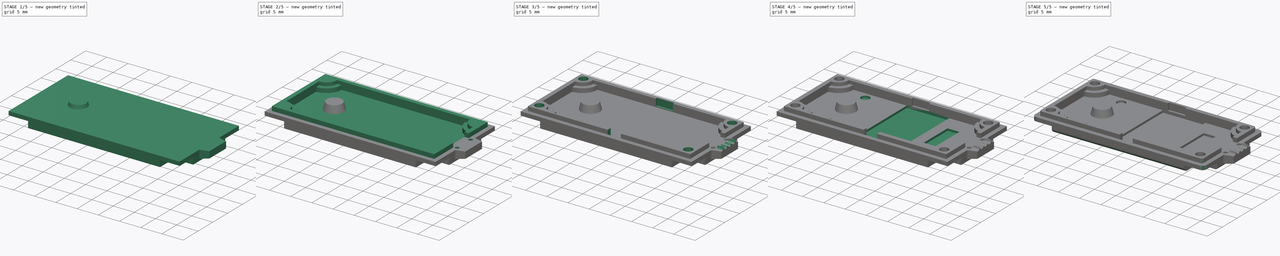
[diagram: build sequence overview — one tinted view per stage of 5, left to right]
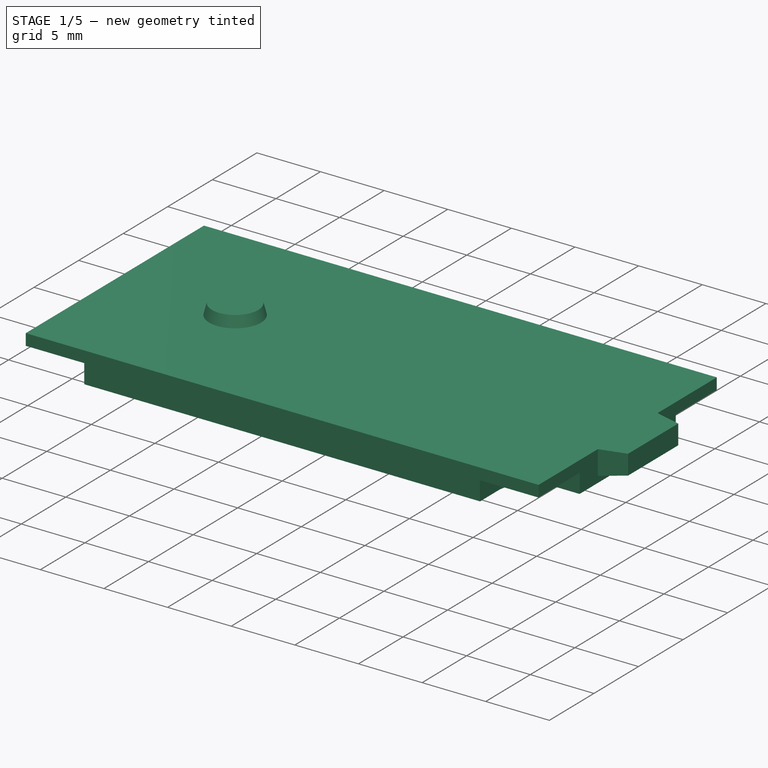
[diagram: stage 1 of 5 — iso view after this stage's code; geometry added in this stage tinted green]
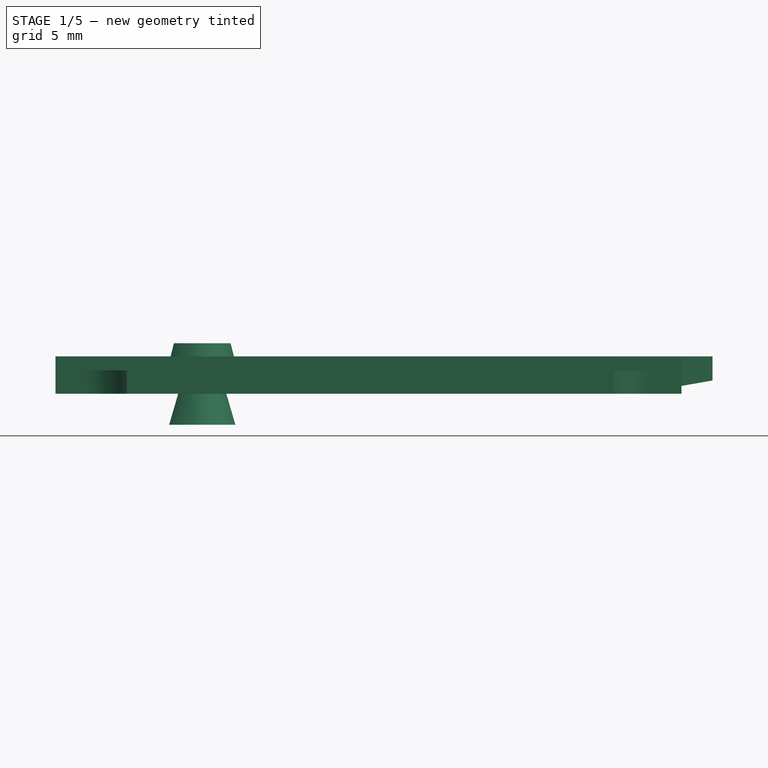
[diagram: stage 1 of 5 — front view after this stage's code; geometry added in this stage tinted green]
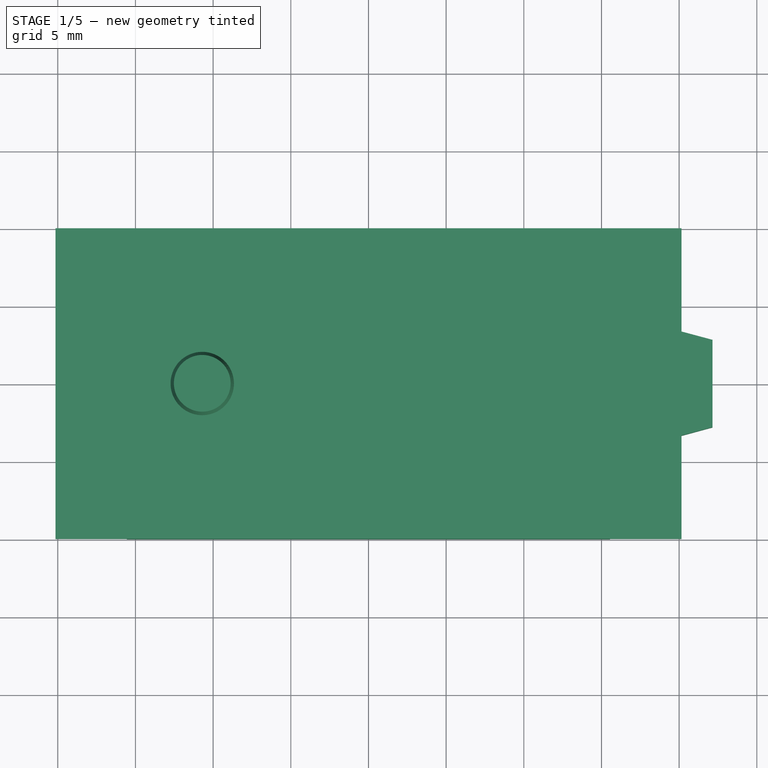
[diagram: stage 1 of 5 — top view after this stage's code; geometry added in this stage tinted green]
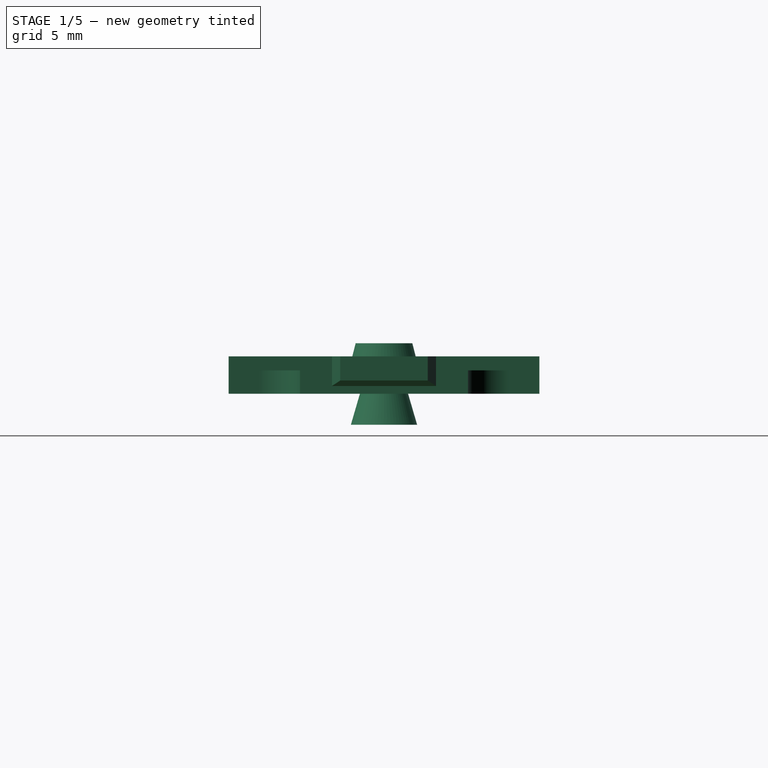
[diagram: stage 1 of 5 — right view after this stage's code; geometry added in this stage tinted green]
FCSTD DOCUMENT  (FreeCAD 0.14R3702 (Git))
Label: Futaba300_lid
License: CC-BY 3.0
LicenseURL: http://creativecommons.org/licenses/by/3.0/
objects: Sketcher::SketchObject×20, PartDesign::Pocket×14, Part::Fillet×4, PartDesign::Pad×3, Part::Loft×1, Part::MultiFuse×1, PartDesign::Revolution×1, Part::Cut×1, App::DocumentObjectGroup×1, Part::Feature×1
note: 64 computed .brp shape members not serialized (recipe doc carries the construction recipe); baked Part::Feature solids carry a one-line shape summary decoded from their .brp

FEATURE [Sketcher::SketchObject] Sketch001  label="Bottom_lid_main001"
  sketch-geometry (8):
    g0: LineSegment StartX=-20.15 StartY=10 StartZ=0 EndX=20.15 EndY=10 EndZ=0
    g1: LineSegment StartX=20.15 StartY=-10 StartZ=0 EndX=-20.15 EndY=-10 EndZ=0
    g2: LineSegment StartX=-20.15 StartY=-10 StartZ=0 EndX=-20.15 EndY=10 EndZ=0
    g3: LineSegment StartX=20.15 StartY=10 StartZ=0 EndX=20.15 EndY=3.35 EndZ=0
    g4: LineSegment StartX=20.15 StartY=3.35 StartZ=0 EndX=22.15 EndY=2.8141 EndZ=0
    g5: LineSegment StartX=22.15 StartY=2.8141 StartZ=0 EndX=22.15 EndY=-2.8141 EndZ=0
    g6: LineSegment StartX=22.15 StartY=-2.8141 StartZ=0 EndX=20.15 EndY=-3.35 EndZ=0
    g7: LineSegment StartX=20.15 StartY=-3.35 StartZ=0 EndX=20.15 EndY=-10 EndZ=0
  constraints (23):
    c: Coincident(g1,g2)
    c: Coincident(g2,g0)
    c: Horizontal(g1)
    c: Vertical(g2)
    c: Symmetric(g0,g0,g-2)
    c: Symmetric(g0,g1,g-1)
    c: Symmetric(g0,g1,g-1)
    c: Vertical(g3)
    c: Vertical(g5)
    c: Vertical(g7)
    c: Coincident(g0,g3)
    c: Coincident(g1,g7)
    c: Symmetric(g7,g3,g-1)
    c: Coincident(g3,g4)
    c: Symmetric(g5,g5,g-1)
    c: Coincident(g4,g5)
    c: Coincident(g5,g6)
    c: Coincident(g6,g7)
    c: Angle(g6) = -2.87979
    c: DistanceY(g3,g6) = -6.7
    c: DistanceX(g3,g4) = 2
    c: DistanceY(g2) = 20
    c: DistanceX(g0) = 40.3
FEATURE [PartDesign::Pad] Pad  label="Bottom_lid_main"
  Length = 2.4
  Length2 = 100
  Reversed = true
  Sketch = -> Sketch001
  Type = 0
FEATURE [Sketcher::SketchObject] Sketch
  ExternalGeometry = -> [Pad]
  Placement = pos=(0,-10,0) rot=(1,0,0;1.5708rad)
  Support = -> Pad [Face3]
  sketch-geometry (4):
    g0: LineSegment StartX=20.15 StartY=-2.4 StartZ=0 EndX=20.15 EndY=-1.9 EndZ=0
    g1: LineSegment StartX=20.15 StartY=-1.9 StartZ=0 EndX=22.5477 EndY=-1.47721 EndZ=0
    g2: LineSegment StartX=22.5477 StartY=-1.47721 StartZ=0 EndX=22.5477 EndY=-2.4 EndZ=0
    g3: LineSegment StartX=20.15 StartY=-2.4 StartZ=0 EndX=22.5477 EndY=-2.4 EndZ=0
  constraints (11):
    c: Vertical(g0)
    c: Vertical(g2)
    c: Horizontal(g3)
    c: Coincident(g2,g3)
    c: Coincident(g0,g3)
    c: Coincident(g0,g1)
    c: Coincident(g1,g2)
    c: Coincident(g-3,g0)
    c: Angle(g1) = 0.174533
    c: DistanceY(g-3,g0) = -1.9
    c: DistanceX(g3) = 2.39775
FEATURE [PartDesign::Pocket] Pocket
  Length = 5
  Sketch = -> Sketch
  Type = 1
FEATURE [Sketcher::SketchObject] Sketch002  label="botom_cutouts"
  ExternalGeometry = -> [Pocket]
  Placement = pos=(0,0,-2.4) rot=(1,0,0;3.14159rad)
  Support = -> Pocket [Face5]
  sketch-geometry (22):
    g0: LineSegment StartX=-15.55 StartY=11 StartZ=0 EndX=-15.55 EndY=8 EndZ=0
    g1: LineSegment StartX=-21.15 StartY=5.4 StartZ=0 EndX=-18.15 EndY=5.4 EndZ=0
    g2: ArcOfCircle CenterX=-18.15 CenterY=8 CenterZ=0 NormalX=0 NormalY=0 NormalZ=1 Radius=2.6 StartAngle=4.71239 EndAngle=6.28319
    g3: LineSegment StartX=21.15 StartY=11 StartZ=0 EndX=15.55 EndY=11 EndZ=0
    g4: LineSegment StartX=21.15 StartY=11 StartZ=0 EndX=21.15 EndY=5.4 EndZ=0
    g5: LineSegment StartX=21.15 StartY=5.4 StartZ=0 EndX=18.15 EndY=5.4 EndZ=0
    g6: LineSegment StartX=15.55 StartY=11 StartZ=0 EndX=15.55 EndY=8 EndZ=0
    g7: ArcOfCircle CenterX=18.15 CenterY=8 CenterZ=0 NormalX=0 NormalY=0 NormalZ=1 Radius=2.6 StartAngle=3.14159 EndAngle=4.71239
    g8: LineSegment StartX=-18.15 StartY=-5.4 StartZ=0 EndX=-21.15 EndY=-5.4 EndZ=0
    g9: LineSegment StartX=-21.15 StartY=-5.4 StartZ=0 EndX=-21.15 EndY=-11 EndZ=0
    g10: LineSegment StartX=-21.15 StartY=-11 StartZ=0 EndX=-15.55 EndY=-11 EndZ=0
    g11: LineSegment StartX=-15.55 StartY=-11 StartZ=0 EndX=-15.55 EndY=-8 EndZ=0
    g12: ArcOfCircle CenterX=-18.15 CenterY=-8 CenterZ=0 NormalX=0 NormalY=0 NormalZ=1 Radius=2.6 StartAngle=0 EndAngle=1.5708
    g13: LineSegment StartX=15.55 StartY=-8 StartZ=0 EndX=15.55 EndY=-11 EndZ=0
    g14: LineSegment StartX=15.55 StartY=-11 StartZ=0 EndX=21.15 EndY=-11 EndZ=0
    g15: LineSegment StartX=21.15 StartY=-11 StartZ=0 EndX=21.15 EndY=-5.4 EndZ=0
    g16: LineSegment StartX=21.15 StartY=-5.4 StartZ=0 EndX=18.15 EndY=-5.4 EndZ=0
    g17: ArcOfCircle CenterX=18.15 CenterY=-8 CenterZ=0 NormalX=0 NormalY=0 NormalZ=1 Radius=2.6 StartAngle=1.5708 EndAngle=3.14159
    g18: LineSegment [constr] StartX=-18.15 StartY=10 StartZ=0 EndX=-18.15 EndY=5.4 EndZ=0
    g19: LineSegment [constr] StartX=-20.15 StartY=8 StartZ=0 EndX=-15.55 EndY=8 EndZ=0
    g20: LineSegment StartX=-21.15 StartY=11 StartZ=0 EndX=-21.15 EndY=5.4 EndZ=0
    g21: LineSegment StartX=-21.15 StartY=11 StartZ=0 EndX=-15.55 EndY=11 EndZ=0
  constraints (54):
    c: Vertical(g0)
    c: Horizontal(g1)
    c: Tangent(g0,g2)
    c: Tangent(g1,g2)
    c: Radius(g2) = 2.6
    c: Horizontal(g3)
    c: Coincident(g3,g4)
    c: Vertical(g4)
    c: Coincident(g4,g5)
    c: Horizontal(g5)
    c: Vertical(g6)
    c: Coincident(g3,g6)
    c: Tangent(g6,g7)
    c: Tangent(g5,g7)
    c: Symmetric(g3,g0,g-2)
    c: Symmetric(g4,g1,g-2)
    c: Symmetric(g0,g6,g-2)
    c: Horizontal(g8)
    c: Coincident(g8,g9)
    c: Coincident(g9,g10)
    c: Coincident(g10,g11)
    c: Vertical(g11)
    c: Tangent(g8,g12)
    c: Tangent(g11,g12)
    c: Symmetric(g8,g1,g-1)
    c: Symmetric(g8,g1,g-1)
    c: Symmetric(g10,g0,g-1)
    c: Coincident(g13,g14)
    c: Horizontal(g14)
    c: Coincident(g14,g15)
    c: Vertical(g15)
    c: Coincident(g15,g16)
    c: Tangent(g16,g17)
    c: Tangent(g13,g17)
    c: Symmetric(g15,g8,g-2)
    c: Symmetric(g14,g9,g-2)
    c: Symmetric(g16,g8,g-2)
    c: Symmetric(g13,g10,g-2)
    c: Symmetric(g13,g11,g-2)
    c: Vertical(g18)
    c: Horizontal(g19)
    c: Coincident(g18,g1)
    c: PointOnObject(g18,g-3)
    c: Coincident(g19,g0)
    c: PointOnObject(g19,g-4)
    c: DistanceX(g19) = 4.6
    c: DistanceY(g18) = -4.6
    c: DistanceX(g1,g-4) = 1
    c: DistanceY(g0,g18) = -1
    c: Vertical(g20)
    c: Horizontal(g21)
    c: Coincident(g20,g21)
    c: Coincident(g21,g0)
    c: Coincident(g20,g1)
FEATURE [PartDesign::Pocket] Pocket001
  Length = 1.5
  Sketch = -> Sketch002
  Type = 0
FEATURE [Sketcher::SketchObject] Sketch017
  sketch-geometry (1):
    g0: Circle CenterX=0 CenterY=0 CenterZ=0 NormalX=0 NormalY=0 NormalZ=1 Radius=2.25
  constraints (2):
    c: Coincident(g0,g-1)
    c: Radius(g0) = 2.25
FEATURE [Sketcher::SketchObject] Sketch018
  Placement = pos=(0,0,1.67) rot=(0,0,1;0rad)
  sketch-geometry (1):
    g0: Circle CenterX=0 CenterY=0 CenterZ=0 NormalX=0 NormalY=0 NormalZ=1 Radius=1.825
  constraints (2):
    c: Coincident(g0,g-1)
    c: Radius(g0) = 1.825
FEATURE [Part::Loft] Loft
  Closed = false
  Placement = pos=(-10.7,0,-0.82) rot=(0,0,1;0rad)
  Ruled = false
  Sections = -> [Sketch017,Sketch018]
  Solid = true
FEATURE [Sketcher::SketchObject] Sketch019
  Placement = pos=(-10.7,0,-2.4) rot=(-1,0,0;4.71239rad)
  sketch-geometry (6):
    g0: LineSegment StartX=0 StartY=0 StartZ=0 EndX=0 EndY=1.2 EndZ=0
    g1: LineSegment StartX=0 StartY=1.2 StartZ=0 EndX=1.2 EndY=1.2 EndZ=0
    g2: LineSegment [constr] StartX=1.55 StartY=0 StartZ=0 EndX=0 EndY=0 EndZ=0
    g3: LineSegment StartX=1.2 StartY=1.2 StartZ=0 EndX=2.13333 EndY=-2 EndZ=0
    g4: LineSegment StartX=0 StartY=0 StartZ=0 EndX=0 EndY=-2 EndZ=0
    g5: LineSegment StartX=0 StartY=-2 StartZ=0 EndX=2.13333 EndY=-2 EndZ=0
  constraints (17):
    c: Vertical(g0)
    c: Coincident(g0,g1)
    c: Horizontal(g1)
    c: Coincident(g2,g0)
    c: Horizontal(g2)
    c: DistanceY(g0) = 1.2
    c: DistanceX(g1) = 1.2
    c: DistanceX(g2) = -1.55
    c: Coincident(g0,g-1)
    c: Coincident(g3,g1)
    c: PointOnObject(g2,g3)
    c: Coincident(g4,g-1)
    c: Vertical(g4)
    c: Coincident(g5,g4)
    c: Coincident(g5,g3)
    c: Horizontal(g5)
    c: DistanceY(g4) = -2
FEATURE [PartDesign::Revolution] Revolution
  Angle = 360
  Axis = (0,0,1)
  Base = (-10.7,0,-2.4)
  Placement = pos=(-10.7,0,-2.4) rot=(-1,0,0;4.71239rad)
  ReferenceAxis = -> Sketch019 [V_Axis]
  Reversed = true
  Sketch = -> Sketch019
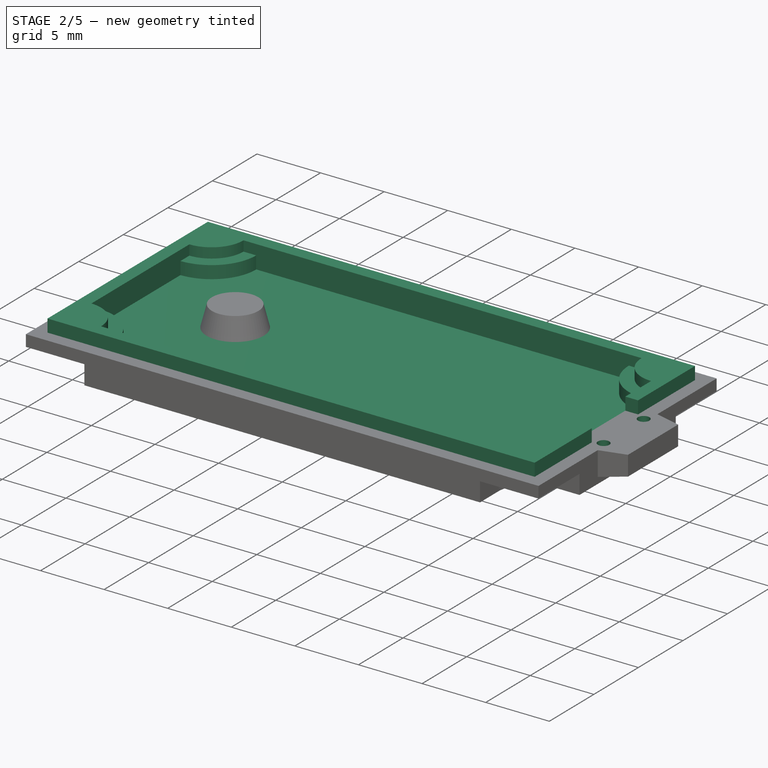
[diagram: stage 2 of 5 — iso view after this stage's code; geometry added in this stage tinted green]
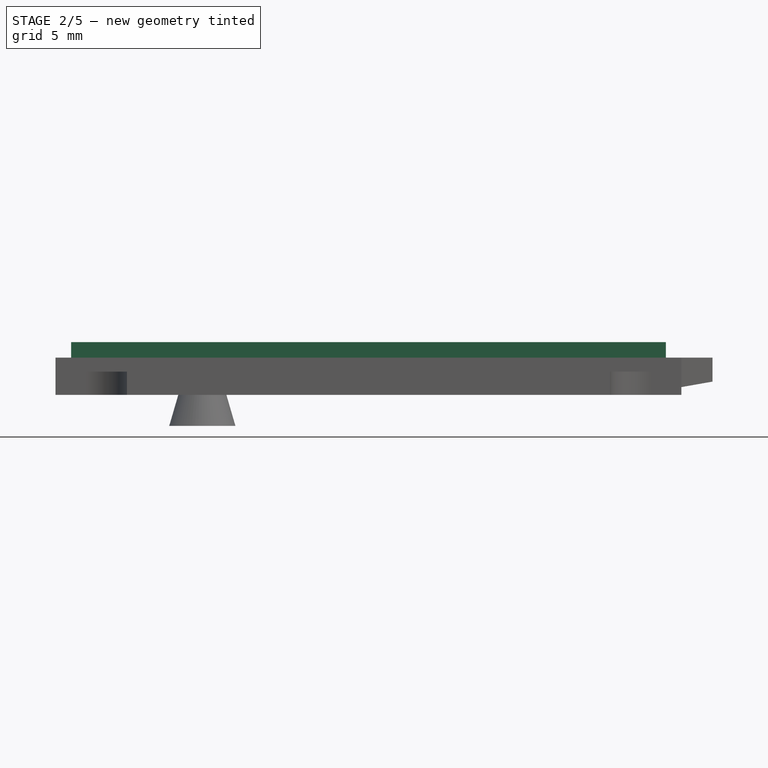
[diagram: stage 2 of 5 — front view after this stage's code; geometry added in this stage tinted green]
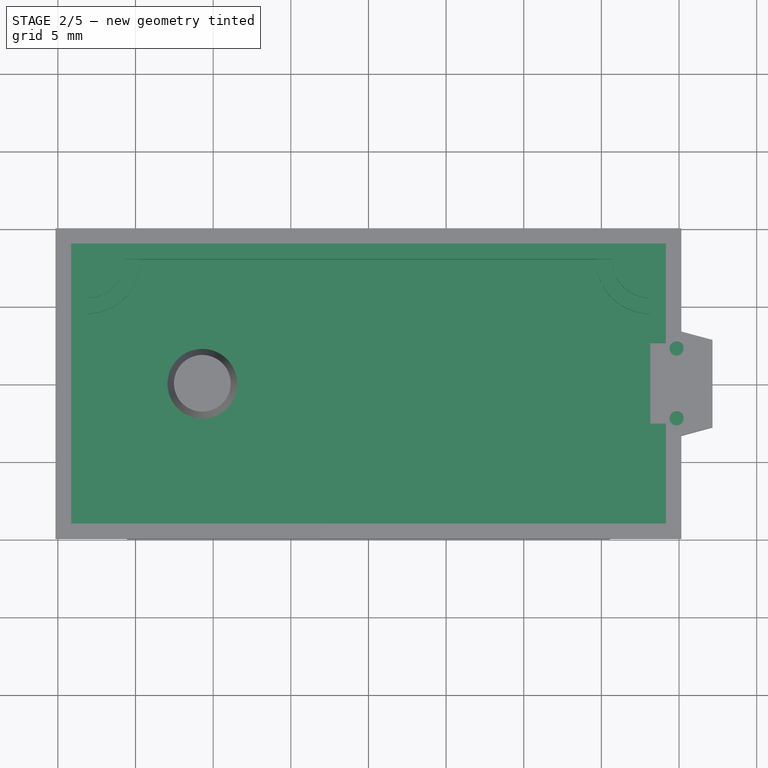
[diagram: stage 2 of 5 — top view after this stage's code; geometry added in this stage tinted green]
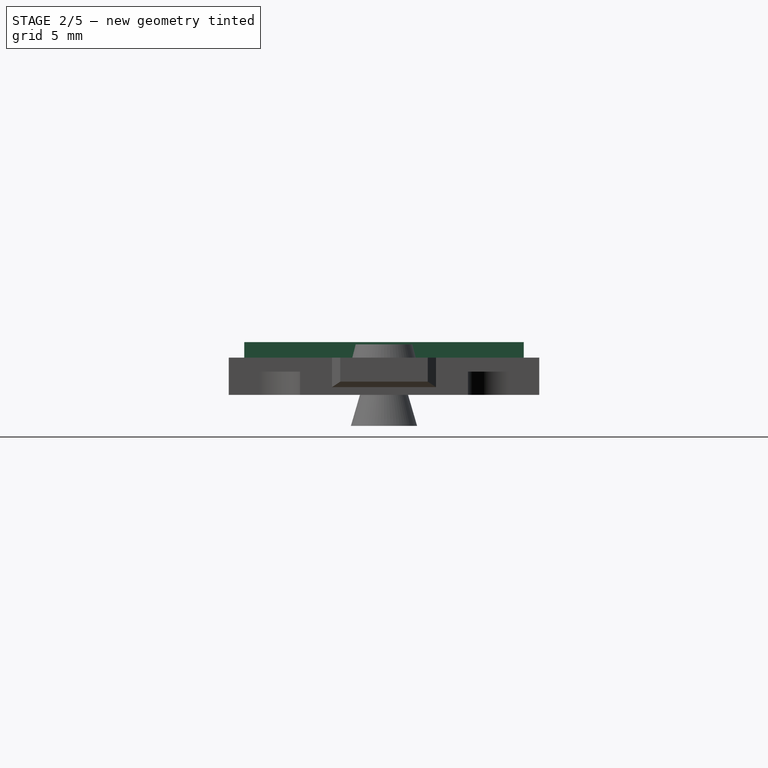
[diagram: stage 2 of 5 — right view after this stage's code; geometry added in this stage tinted green]
FEATURE [Sketcher::SketchObject] Sketch003
  ExternalGeometry = -> [Pocket001]
  Support = -> Pocket001 [Face1]
  sketch-geometry (4):
    g0: LineSegment StartX=-19.15 StartY=9 StartZ=0 EndX=19.15 EndY=9 EndZ=0
    g1: LineSegment StartX=19.15 StartY=9 StartZ=0 EndX=19.15 EndY=-9 EndZ=0
    g2: LineSegment StartX=19.15 StartY=-9 StartZ=0 EndX=-19.15 EndY=-9 EndZ=0
    g3: LineSegment StartX=-19.15 StartY=-9 StartZ=0 EndX=-19.15 EndY=9 EndZ=0
  constraints (12):
    c: Coincident(g0,g1)
    c: Coincident(g1,g2)
    c: Coincident(g2,g3)
    c: Coincident(g3,g0)
    c: Horizontal(g0)
    c: Horizontal(g2)
    c: Vertical(g1)
    c: Vertical(g3)
    c: Symmetric(g0,g0,g-2)
    c: Symmetric(g0,g2,g-1)
    c: DistanceX(g0,g-3) = -1
    c: DistanceY(g-3,g0) = -1
FEATURE [PartDesign::Pad] Pad001
  Length = 1
  Length2 = 100
  Sketch = -> Sketch003
  Type = 0
FEATURE [Sketcher::SketchObject] Sketch004
  ExternalGeometry = -> [Pad001]
  Placement = pos=(0,0,1) rot=(0,0,1;0rad)
  Support = -> Pad001 [Face35]
  sketch-geometry (8):
    g0: LineSegment StartX=-15.65 StartY=8 StartZ=0 EndX=15.65 EndY=8 EndZ=0
    g1: LineSegment StartX=-15.65 StartY=-8 StartZ=0 EndX=15.65 EndY=-8 EndZ=0
    g2: LineSegment StartX=-18.15 StartY=5.5 StartZ=0 EndX=-18.15 EndY=-5.5 EndZ=0
    g3: LineSegment StartX=18.15 StartY=5.5 StartZ=0 EndX=18.15 EndY=-5.5 EndZ=0
    g4: ArcOfCircle CenterX=-18.15 CenterY=8 CenterZ=0 NormalX=0 NormalY=0 NormalZ=1 Radius=2.5 StartAngle=4.71239 EndAngle=6.28319
    g5: ArcOfCircle CenterX=18.15 CenterY=8 CenterZ=0 NormalX=0 NormalY=0 NormalZ=1 Radius=2.5 StartAngle=3.14159 EndAngle=4.71239
    g6: ArcOfCircle CenterX=18.15 CenterY=-8 CenterZ=0 NormalX=0 NormalY=0 NormalZ=1 Radius=2.5 StartAngle=1.5708 EndAngle=3.14159
    g7: ArcOfCircle CenterX=-18.15 CenterY=-8 CenterZ=0 NormalX=0 NormalY=0 NormalZ=1 Radius=2.5 StartAngle=0 EndAngle=1.5708
  constraints (26):
    c: Horizontal(g0)
    c: Horizontal(g1)
    c: Vertical(g2)
    c: Vertical(g3)
    c: Symmetric(g0,g0,g-2)
    c: Symmetric(g1,g1,g-2)
    c: Symmetric(g2,g2,g-1)
    c: Symmetric(g3,g3,g-1)
    c: Coincident(g4,g0)
    c: Coincident(g4,g2)
    c: DistanceY(g4,g-3) = 1
    c: DistanceX(g4,g-3) = -1
    c: Perpendicular(g4,g0)
    c: Perpendicular(g4,g2)
    c: Symmetric(g5,g4,g-2)
    c: Coincident(g5,g0)
    c: Coincident(g5,g3)
    c: Symmetric(g2,g3,g-2)
    c: Symmetric(g1,g0,g-1)
    c: Coincident(g7,g2)
    c: Coincident(g7,g1)
    c: Perpendicular(g2,g7)
    c: Coincident(g1,g6)
    c: Coincident(g3,g6)
    c: Perpendicular(g6,g3)
    c: DistanceX(g-3,g0) = 3.5
FEATURE [PartDesign::Pocket] Pocket002
  Length = 0.8
  Sketch = -> Sketch004
  Type = 0
FEATURE [Sketcher::SketchObject] Sketch005
  ExternalGeometry = -> [Pocket002]
  Placement = pos=(0,0,0.2) rot=(0,0,1;0rad)
  Support = -> Pocket002 [Face44]
  sketch-geometry (10):
    g0: ArcOfCircle CenterX=-18.15 CenterY=8 CenterZ=0 NormalX=0 NormalY=0 NormalZ=1 Radius=3.5 StartAngle=4.71239 EndAngle=6.28319
    g1: LineSegment [constr] StartX=-18.15 StartY=5.5 StartZ=0 EndX=-18.15 EndY=8 EndZ=0
    g2: LineSegment [constr] StartX=-18.15 StartY=8 StartZ=0 EndX=-15.65 EndY=8 EndZ=0
    g3: LineSegment StartX=-14.65 StartY=8 StartZ=0 EndX=14.65 EndY=8 EndZ=0
    g4: LineSegment StartX=18.15 StartY=4.5 StartZ=0 EndX=18.15 EndY=-4.5 EndZ=0
    g5: ArcOfCircle CenterX=18.15 CenterY=8 CenterZ=0 NormalX=0 NormalY=0 NormalZ=1 Radius=3.5 StartAngle=3.14159 EndAngle=4.71239
    g6: LineSegment StartX=-18.15 StartY=4.5 StartZ=0 EndX=-18.15 EndY=-4.5 EndZ=0
    g7: ArcOfCircle CenterX=-18.15 CenterY=-8 CenterZ=0 NormalX=0 NormalY=0 NormalZ=1 Radius=3.5 StartAngle=-1e-12 EndAngle=1.5708
    g8: LineSegment StartX=-14.65 StartY=-8 StartZ=0 EndX=14.65 EndY=-8 EndZ=0
    g9: ArcOfCircle CenterX=18.15 CenterY=-8 CenterZ=0 NormalX=0 NormalY=0 NormalZ=1 Radius=3.5 StartAngle=1.5708 EndAngle=3.14159
  constraints (30):
    c: Coincident(g1,g-3)
    c: Coincident(g1,g0)
    c: Vertical(g1)
    c: Coincident(g2,g0)
    c: Coincident(g2,g-4)
    c: Horizontal(g2)
    c: PointOnObject(g0,g-3)
    c: PointOnObject(g0,g-4)
    c: DistanceX(g2,g0) = 1
    c: Horizontal(g3)
    c: Coincident(g3,g0)
    c: Symmetric(g0,g3,g-2)
    c: Vertical(g4)
    c: Symmetric(g0,g4,g-2)
    c: Coincident(g5,g4)
    c: Perpendicular(g5,g-4)
    c: Coincident(g5,g3)
    c: Vertical(g6)
    c: Coincident(g6,g0)
    c: Symmetric(g0,g6,g-1)
    c: Symmetric(g6,g4,g-2)
    c: Coincident(g7,g6)
    c: Horizontal(g8)
    c: Symmetric(g8,g8,g-2)
    c: Coincident(g7,g8)
    c: Coincident(g8,g9)
    c: Coincident(g4,g9)
    c: Perpendicular(g7,g6)
    c: Perpendicular(g8,g9)
    c: Symmetric(g8,g3,g-1)
FEATURE [PartDesign::Pocket] Pocket003
  Length = 1
  Sketch = -> Sketch005
  Type = 0
FEATURE [Sketcher::SketchObject] Sketch006
  ExternalGeometry = -> [Pocket003]
  Support = -> Pocket003 [Face7]
  sketch-geometry (6):
    g0: Circle CenterX=19.84 CenterY=2.25 CenterZ=0 NormalX=0 NormalY=0 NormalZ=1 Radius=0.45
    g1: Circle CenterX=19.84 CenterY=-2.25 CenterZ=0 NormalX=0 NormalY=0 NormalZ=1 Radius=0.45
    g2: LineSegment [constr] StartX=19.84 StartY=2.25 StartZ=0 EndX=19.84 EndY=10 EndZ=0
    g3: GeomPoint [constr] X=19.84 Y=2.7 Z=0
    g4: LineSegment [constr] StartX=19.84 StartY=2.25 StartZ=0 EndX=22.15 EndY=2.25 EndZ=0
    g5: GeomPoint [constr] X=20.29 Y=2.25 Z=0
  constraints (15):
    c: Equal(g0,g1)
    c: Symmetric(g1,g0,g-1)
    c: Radius(g0) = 0.45
    c: Coincident(g2,g0)
    c: PointOnObject(g2,g-3)
    c: Vertical(g2)
    c: PointOnObject(g3,g0)
    c: PointOnObject(g3,g2)
    c: Coincident(g4,g0)
    c: PointOnObject(g4,g-4)
    c: Horizontal(g4)
    c: PointOnObject(g5,g4)
    c: PointOnObject(g5,g0)
    c: DistanceY(g3,g2) = 7.3
    c: DistanceX(g5,g4) = 1.86
FEATURE [PartDesign::Pocket] Pocket004
  Length = 1
  Sketch = -> Sketch006
  Type = 0
FEATURE [Sketcher::SketchObject] Sketch007
  ExternalGeometry = -> [Pocket004]
  Placement = pos=(19.15,0,0) rot=(0.57735,0.57735,0.57735;2.0944rad)
  Support = -> Pocket004 [Face27]
  sketch-geometry (4):
    g0: LineSegment StartX=-2.6 StartY=2 StartZ=0 EndX=2.6 EndY=2 EndZ=0
    g1: LineSegment StartX=2.6 StartY=2 StartZ=0 EndX=2.6 EndY=0 EndZ=0
    g2: LineSegment StartX=2.6 StartY=0 StartZ=0 EndX=-2.6 EndY=0 EndZ=0
    g3: LineSegment StartX=-2.6 StartY=0 StartZ=0 EndX=-2.6 EndY=2 EndZ=0
  constraints (12):
    c: Coincident(g0,g1)
    c: Coincident(g1,g2)
    c: Coincident(g2,g3)
    c: Coincident(g3,g0)
    c: Horizontal(g0)
    c: Horizontal(g2)
    c: Vertical(g1)
    c: Vertical(g3)
    c: PointOnObject(g1,g-3)
    c: Symmetric(g1,g2,g-2)
    c: DistanceX(g1,g-4) = 6.4
    c: DistanceY(g-4,g0) = 1
FEATURE [PartDesign::Pocket] Pocket005
  Length = 5
  Sketch = -> Sketch007
  Type = 2
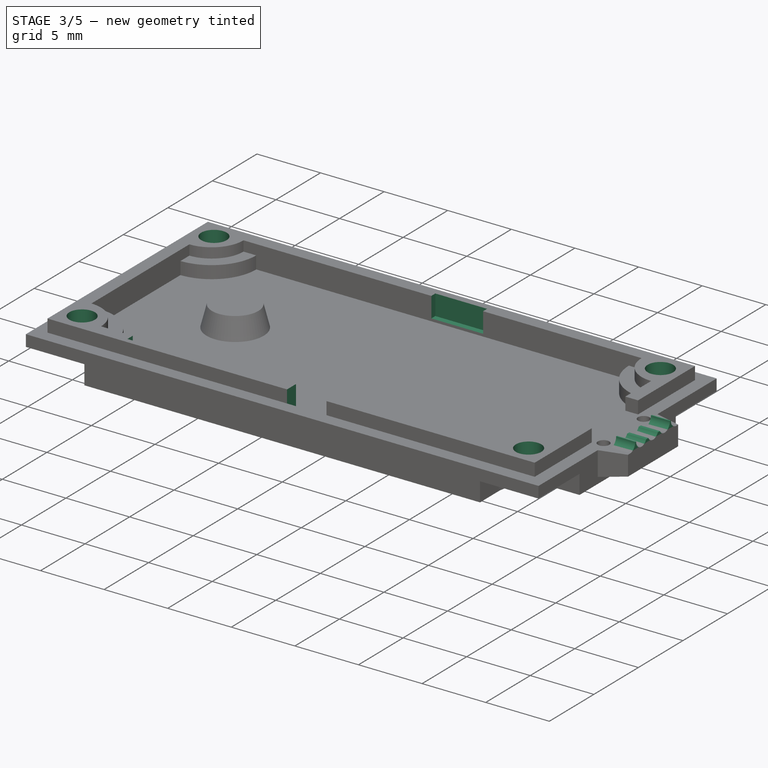
[diagram: stage 3 of 5 — iso view after this stage's code; geometry added in this stage tinted green]
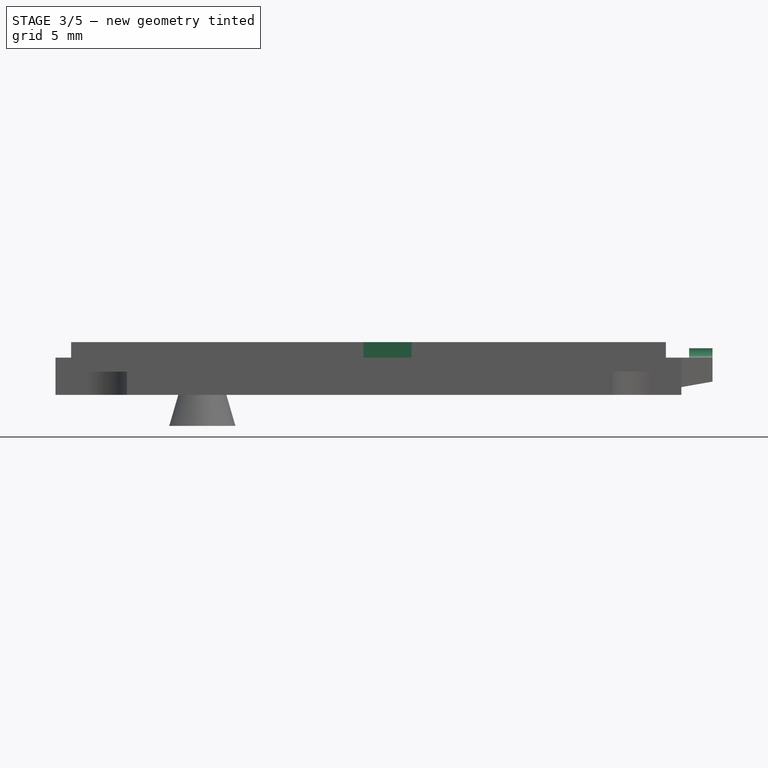
[diagram: stage 3 of 5 — front view after this stage's code; geometry added in this stage tinted green]
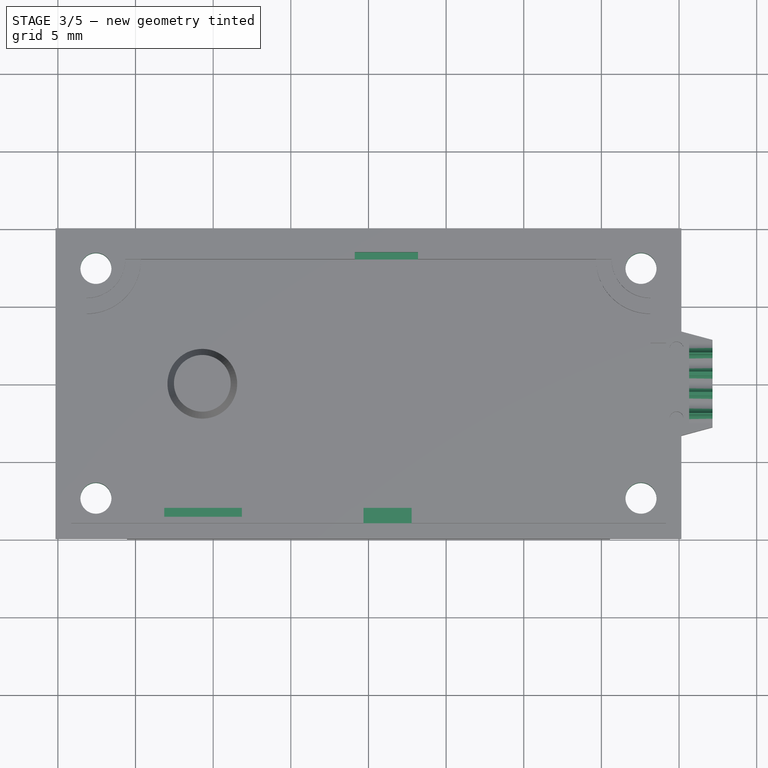
[diagram: stage 3 of 5 — top view after this stage's code; geometry added in this stage tinted green]
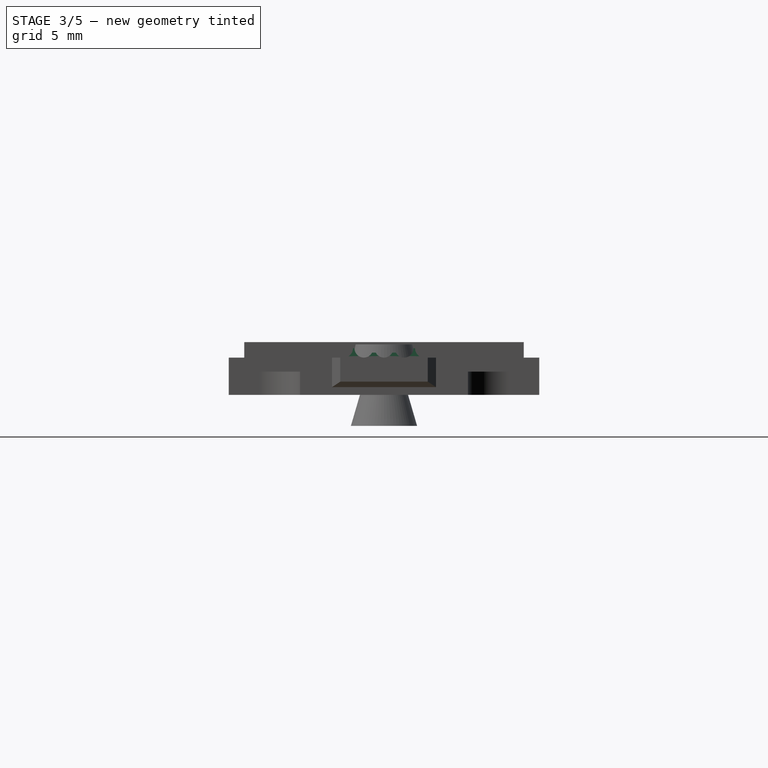
[diagram: stage 3 of 5 — right view after this stage's code; geometry added in this stage tinted green]
FEATURE [Sketcher::SketchObject] Sketch008
  ExternalGeometry = -> [Pocket005]
  Support = -> Pocket005 [Face26]
  sketch-geometry (4):
    g0: LineSegment StartX=20.65 StartY=2.6 StartZ=0 EndX=22.15 EndY=2.6 EndZ=0
    g1: LineSegment StartX=22.15 StartY=2.6 StartZ=0 EndX=22.15 EndY=-2.6 EndZ=0
    g2: LineSegment StartX=22.15 StartY=-2.6 StartZ=0 EndX=20.65 EndY=-2.6 EndZ=0
    g3: LineSegment StartX=20.65 StartY=-2.6 StartZ=0 EndX=20.65 EndY=2.6 EndZ=0
  constraints (12):
    c: Coincident(g0,g1)
    c: Coincident(g1,g2)
    c: Coincident(g2,g3)
    c: Coincident(g3,g0)
    c: Horizontal(g0)
    c: Horizontal(g2)
    c: Vertical(g1)
    c: Vertical(g3)
    c: Symmetric(g1,g0,g-1)
    c: PointOnObject(g1,g-3)
    c: PointOnObject(g0,g-4)
    c: DistanceX(g0) = 1.5
FEATURE [PartDesign::Pad] Pad002
  Length = 0.6
  Length2 = 100
  Sketch = -> Sketch008
  Type = 0
FEATURE [Sketcher::SketchObject] Sketch009
  ExternalGeometry = -> [Pad002]
  Placement = pos=(22.15,0,0) rot=(0.57735,0.57735,0.57735;2.0944rad)
  Support = -> Pad002 [Face59]
  sketch-geometry (7):
    g0: Circle CenterX=0 CenterY=0.6 CenterZ=0 NormalX=0 NormalY=0 NormalZ=1 Radius=0.6
    g1: LineSegment [constr] StartX=0 StartY=0.6 StartZ=0 EndX=0 EndY=0 EndZ=0
    g2: Circle CenterX=1.3 CenterY=0.6 CenterZ=0 NormalX=0 NormalY=0 NormalZ=1 Radius=0.6
    g3: Circle CenterX=-1.3 CenterY=0.6 CenterZ=0 NormalX=0 NormalY=0 NormalZ=1 Radius=0.6
    g4: GeomPoint [constr] X=-1.9 Y=0.6 Z=0
    g5: Circle CenterX=-2.6 CenterY=0.6 CenterZ=0 NormalX=0 NormalY=0 NormalZ=1 Radius=0.6
    g6: Circle CenterX=2.6 CenterY=0.6 CenterZ=0 NormalX=0 NormalY=0 NormalZ=1 Radius=0.6
  constraints (17):
    c: PointOnObject(g0,g-3)
    c: PointOnObject(g-1,g0)
    c: Coincident(g1,g0)
    c: Coincident(g1,g-1)
    c: Vertical(g1)
    c: PointOnObject(g2,g-3)
    c: Equal(g2,g0)
    c: PointOnObject(g3,g-3)
    c: Equal(g3,g0)
    c: Symmetric(g3,g2,g-2)
    c: PointOnObject(g4,g-3)
    c: PointOnObject(g4,g3)
    c: DistanceX(g-3,g4) = 0.7
    c: Coincident(g5,g-3)
    c: Equal(g5,g3)
    c: Coincident(g6,g-3)
    c: Equal(g6,g2)
FEATURE [PartDesign::Pocket] Pocket006
  Length = 1.7
  Sketch = -> Sketch009
  Type = 0
FEATURE [Sketcher::SketchObject] Sketch010
  ExternalGeometry = -> [Pocket006]
  Placement = pos=(22.15,0,0) rot=(0.57735,0.57735,0.57735;2.0944rad)
  Support = -> Pocket006 [Face3]
  sketch-geometry (5):
    g0: LineSegment StartX=-1 StartY=0.9 StartZ=0 EndX=1 EndY=0.9 EndZ=0
    g1: LineSegment StartX=1 StartY=0.9 StartZ=0 EndX=1 EndY=0.32 EndZ=0
    g2: LineSegment StartX=1 StartY=0.32 StartZ=0 EndX=-1 EndY=0.32 EndZ=0
    g3: LineSegment StartX=-1 StartY=0.32 StartZ=0 EndX=-1 EndY=0.9 EndZ=0
    g4: LineSegment [constr] StartX=-1 StartY=0.6 StartZ=0 EndX=1 EndY=0.6 EndZ=0
  constraints (16):
    c: Coincident(g0,g1)
    c: Coincident(g1,g2)
    c: Coincident(g2,g3)
    c: Coincident(g3,g0)
    c: Horizontal(g0)
    c: Horizontal(g2)
    c: Vertical(g1)
    c: Vertical(g3)
    c: PointOnObject(g4,g3)
    c: PointOnObject(g4,g1)
    c: Horizontal(g4)
    c: DistanceY(g4,g2) = -0.28
    c: PointOnObject(g-3,g4)
    c: Symmetric(g2,g1,g-2)
    c: DistanceX(g-3,g4) = -0.3
    c: DistanceY(g4,g0) = 0.3
FEATURE [PartDesign::Pocket] Pocket007
  Length = 2
  Sketch = -> Sketch010
  Type = 0
FEATURE [Sketcher::SketchObject] Sketch011
  ExternalGeometry = -> [Pocket007]
  Placement = pos=(0,0,1) rot=(0,0,1;0rad)
  Support = -> Pocket007 [Face46]
  sketch-geometry (7):
    g0: LineSegment [constr] StartX=-19.15 StartY=9 StartZ=0 EndX=-17.55 EndY=7.4 EndZ=0
    g1: Circle CenterX=-17.55 CenterY=7.4 CenterZ=0 NormalX=0 NormalY=0 NormalZ=1 Radius=1
    g2: LineSegment [constr] StartX=-17.55 StartY=7.4 StartZ=0 EndX=-19.15 EndY=7.4 EndZ=0
    g3: GeomPoint [constr] X=-18.55 Y=7.4 Z=0
    g4: Circle CenterX=17.55 CenterY=7.4 CenterZ=0 NormalX=0 NormalY=0 NormalZ=1 Radius=1
    g5: Circle CenterX=17.55 CenterY=-7.4 CenterZ=0 NormalX=0 NormalY=0 NormalZ=1 Radius=1
    g6: Circle CenterX=-17.55 CenterY=-7.4 CenterZ=0 NormalX=0 NormalY=0 NormalZ=1 Radius=1
  constraints (16):
    c: Coincident(g0,g-4)
    c: Angle(g0,g-3) = 0.785398
    c: Coincident(g1,g0)
    c: Radius(g1) = 1
    c: PointOnObject(g2,g-4)
    c: Horizontal(g2)
    c: Coincident(g2,g0)
    c: PointOnObject(g3,g2)
    c: PointOnObject(g3,g1)
    c: DistanceX(g2,g3) = 0.6
    c: Symmetric(g0,g4,g-2)
    c: Equal(g4,g5)
    c: Equal(g5,g6)
    c: Equal(g6,g1)
    c: Symmetric(g0,g6,g-1)
    c: Symmetric(g6,g5,g-2)
FEATURE [PartDesign::Pocket] Pocket008
  Length = 5
  Sketch = -> Sketch011
  Type = 1
FEATURE [Sketcher::SketchObject] Sketch012
  ExternalGeometry = -> [Pocket008]
  Placement = pos=(0,0,1) rot=(0,0,1;0rad)
  Support = -> Pocket008 [Face46]
  sketch-geometry (14):
    g0: LineSegment StartX=-0.32 StartY=-7 StartZ=0 EndX=2.78 EndY=-7 EndZ=0
    g1: LineSegment StartX=2.78 StartY=-7 StartZ=0 EndX=2.78 EndY=-9 EndZ=0
    g2: LineSegment StartX=-0.32 StartY=-9 StartZ=0 EndX=-0.32 EndY=-7 EndZ=0
    g3: LineSegment StartX=-0.88 StartY=8.45 StartZ=0 EndX=3.19 EndY=8.45 EndZ=0
    g4: LineSegment StartX=3.19 StartY=8.45 StartZ=0 EndX=3.19 EndY=7.4 EndZ=0
    g5: LineSegment StartX=3.19 StartY=7.4 StartZ=0 EndX=-0.88 EndY=7.4 EndZ=0
    g6: LineSegment StartX=-0.88 StartY=7.4 StartZ=0 EndX=-0.88 EndY=8.45 EndZ=0
    g7: LineSegment [constr] StartX=-0.88 StartY=8 StartZ=0 EndX=3.19 EndY=8 EndZ=0
    g8: LineSegment StartX=-0.32 StartY=-9 StartZ=0 EndX=2.78 EndY=-9 EndZ=0
    g9: LineSegment StartX=-13.15 StartY=-7.5 StartZ=0 EndX=-8.15 EndY=-7.5 EndZ=0
    g10: LineSegment StartX=-8.15 StartY=-7.5 StartZ=0 EndX=-8.15 EndY=-8.6 EndZ=0
    g11: LineSegment StartX=-8.15 StartY=-8.6 StartZ=0 EndX=-13.15 EndY=-8.6 EndZ=0
    g12: LineSegment StartX=-13.15 StartY=-8.6 StartZ=0 EndX=-13.15 EndY=-7.5 EndZ=0
    g13: LineSegment [constr] StartX=-13.15 StartY=-8 StartZ=0 EndX=-8.15 EndY=-8 EndZ=0
  constraints (44):
    c: Coincident(g0,g1)
    c: Coincident(g2,g0)
    c: Horizontal(g0)
    c: Vertical(g1)
    c: Vertical(g2)
    c: DistanceX(g1,g-3) = 16.37
    c: DistanceY(g0,g1) = -2
    c: Coincident(g3,g4)
    c: Coincident(g4,g5)
    c: Coincident(g5,g6)
    c: Coincident(g6,g3)
    c: Horizontal(g3)
    c: Horizontal(g5)
    c: Vertical(g4)
    c: Vertical(g6)
    c: DistanceX(g3,g-5) = 15.96
    c: DistanceX(g3) = 4.07
    c: PointOnObject(g7,g6)
    c: PointOnObject(g7,g4)
    c: Horizontal(g7)
    c: PointOnObject(g7,g-6)
    c: DistanceY(g3,g7) = -0.45
    c: DistanceY(g7,g5) = -0.6
    c: PointOnObject(g2,g-4)
    c: PointOnObject(g1,g-4)
    c: Coincident(g8,g2)
    c: Coincident(g8,g1)
    c: DistanceX(g0) = 3.1
    c: Coincident(g9,g10)
    c: Coincident(g10,g11)
    c: Coincident(g11,g12)
    c: Coincident(g12,g9)
    c: Horizontal(g9)
    c: Horizontal(g11)
    c: Vertical(g10)
    c: Vertical(g12)
    c: Horizontal(g13)
    c: PointOnObject(g13,g12)
    c: PointOnObject(g13,g10)
    c: DistanceX(g-4,g11) = 6
    c: PointOnObject(g13,g-7)
    c: DistanceY(g13,g10) = -0.6
    c: DistanceY(g9,g13) = -0.5
    c: DistanceX(g9) = 5
FEATURE [PartDesign::Pocket] Pocket009
  Length = 1.6
  Sketch = -> Sketch012
  Type = 0
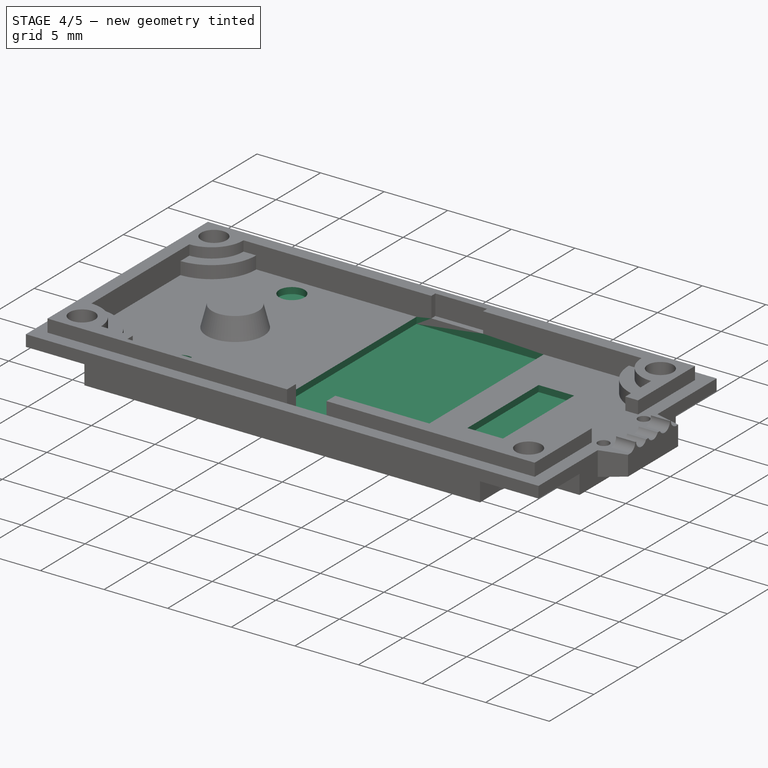
[diagram: stage 4 of 5 — iso view after this stage's code; geometry added in this stage tinted green]
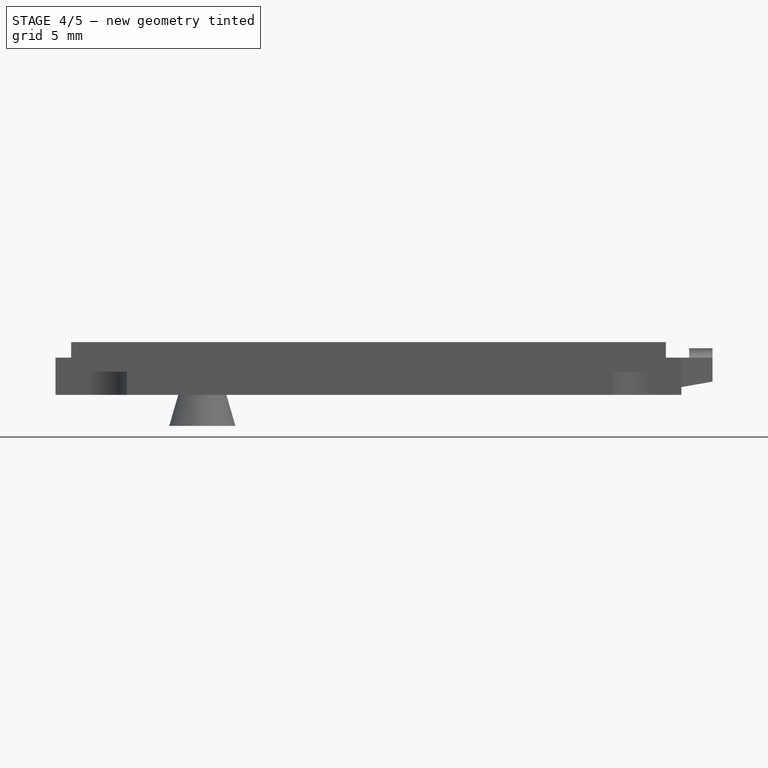
[diagram: stage 4 of 5 — front view after this stage's code; geometry added in this stage tinted green]
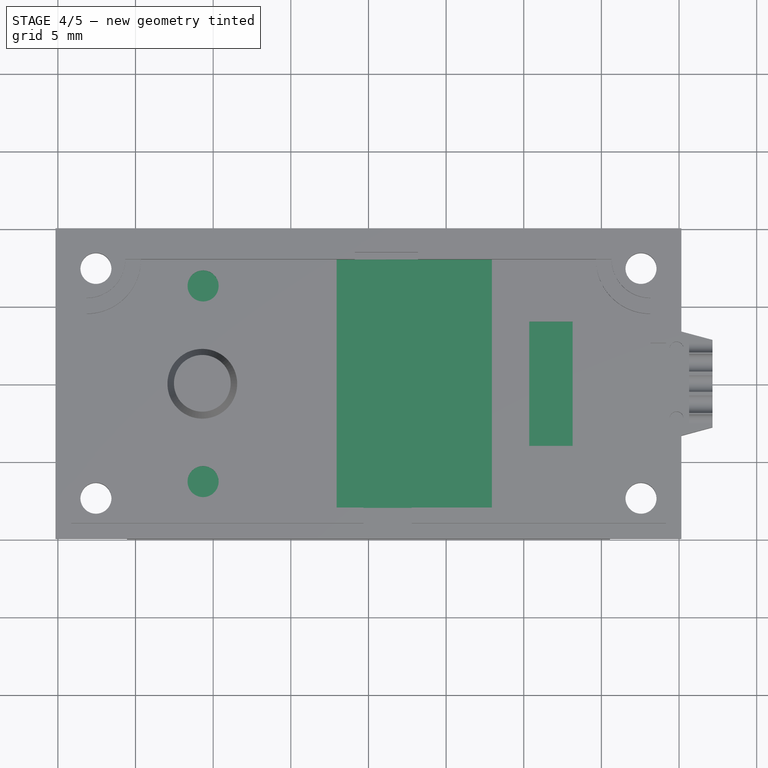
[diagram: stage 4 of 5 — top view after this stage's code; geometry added in this stage tinted green]
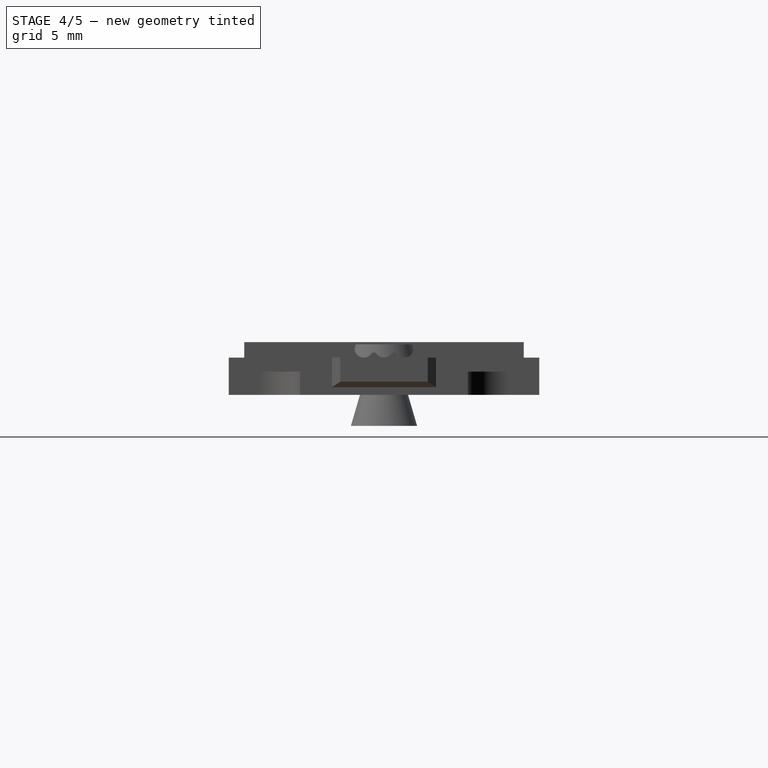
[diagram: stage 4 of 5 — right view after this stage's code; geometry added in this stage tinted green]
FEATURE [Sketcher::SketchObject] Sketch013
  Placement = pos=(0,0,-0.8) rot=(0,0,1;0rad)
  Support = -> Pocket009 [Face56]
  sketch-geometry (4):
    g0: LineSegment StartX=-2.05 StartY=8 StartZ=0 EndX=7.95 EndY=8 EndZ=0
    g1: LineSegment StartX=7.95 StartY=8 StartZ=0 EndX=7.95 EndY=-8 EndZ=0
    g2: LineSegment StartX=7.95 StartY=-8 StartZ=0 EndX=-2.05 EndY=-8 EndZ=0
    g3: LineSegment StartX=-2.05 StartY=-8 StartZ=0 EndX=-2.05 EndY=8 EndZ=0
  constraints (10):
    c: Coincident(g0,g1)
    c: Coincident(g1,g2)
    c: Coincident(g2,g3)
    c: Coincident(g3,g0)
    c: Horizontal(g0)
    c: Horizontal(g2)
    c: Vertical(g1)
    c: Vertical(g3)
    c: Symmetric(g0,g1,g-1)
    c: DistanceX(g0) = 10
FEATURE [PartDesign::Pocket] Pocket010
  Length = 0.5
  Sketch = -> Sketch013
  Type = 0
FEATURE [Sketcher::SketchObject] Sketch014
  ExternalGeometry = -> [Pocket010]
  Placement = pos=(0,0,-0.8) rot=(0,0,1;0rad)
  Support = -> Pocket010 [Face56]
  sketch-geometry (4):
    g0: LineSegment StartX=10.35 StartY=4 StartZ=0 EndX=13.15 EndY=4 EndZ=0
    g1: LineSegment StartX=13.15 StartY=4 StartZ=0 EndX=13.15 EndY=-4 EndZ=0
    g2: LineSegment StartX=13.15 StartY=-4 StartZ=0 EndX=10.35 EndY=-4 EndZ=0
    g3: LineSegment StartX=10.35 StartY=-4 StartZ=0 EndX=10.35 EndY=4 EndZ=0
  constraints (12):
    c: Coincident(g0,g1)
    c: Coincident(g1,g2)
    c: Coincident(g2,g3)
    c: Coincident(g3,g0)
    c: Horizontal(g0)
    c: Horizontal(g2)
    c: Vertical(g1)
    c: Vertical(g3)
    c: Symmetric(g1,g0,g-1)
    c: DistanceX(g0,g-3) = 6
    c: DistanceX(g0) = 2.8
    c: DistanceY(g3) = 8
FEATURE [PartDesign::Pocket] Pocket011
  Length = 0.5
  Sketch = -> Sketch014
  Type = 0
FEATURE [Sketcher::SketchObject] Sketch015
  ExternalGeometry = -> [Pocket011]
  Placement = pos=(0,0,-0.8) rot=(0,0,1;0rad)
  Support = -> Pocket011 [Face88]
  sketch-geometry (6):
    g0: Circle CenterX=-10.65 CenterY=6.3 CenterZ=0 NormalX=0 NormalY=0 NormalZ=1 Radius=1
    g1: LineSegment [constr] StartX=-10.65 StartY=6.3 StartZ=0 EndX=-20.15 EndY=6.3 EndZ=0
    g2: LineSegment [constr] StartX=-10.65 StartY=6.3 StartZ=0 EndX=-10.65 EndY=10 EndZ=0
    g3: GeomPoint [constr] X=-11.65 Y=6.3 Z=0
    g4: GeomPoint [constr] X=-10.65 Y=7.3 Z=0
    g5: Circle CenterX=-10.65 CenterY=-6.3 CenterZ=0 NormalX=0 NormalY=0 NormalZ=1 Radius=1
  constraints (15):
    c: Radius(g0) = 1
    c: Coincident(g1,g0)
    c: PointOnObject(g1,g-3)
    c: Horizontal(g1)
    c: Coincident(g2,g0)
    c: Vertical(g2)
    c: PointOnObject(g3,g1)
    c: PointOnObject(g4,g2)
    c: PointOnObject(g3,g0)
    c: PointOnObject(g4,g0)
    c: DistanceY(g4,g2) = 2.7
    c: PointOnObject(g2,g-4)
    c: DistanceX(g3,g1) = -8.5
    c: Equal(g0,g5)
    c: Symmetric(g0,g5,g-1)
FEATURE [PartDesign::Pocket] Pocket012
  Length = 0.5
  Sketch = -> Sketch015
  Type = 0
FEATURE [Sketcher::SketchObject] Sketch016
  ExternalGeometry = -> [Pocket012]
  Placement = pos=(0,0,-2.4) rot=(1,0,0;3.14159rad)
  Support = -> Pocket012 [Face36]
  sketch-geometry (4):
    g0: LineSegment StartX=-7.65 StartY=7.75 StartZ=0 EndX=-3.45 EndY=7.75 EndZ=0
    g1: LineSegment StartX=-3.45 StartY=7.75 StartZ=0 EndX=-3.45 EndY=-7.75 EndZ=0
    g2: LineSegment StartX=-3.45 StartY=-7.75 StartZ=0 EndX=-7.65 EndY=-7.75 EndZ=0
    g3: LineSegment StartX=-7.65 StartY=-7.75 StartZ=0 EndX=-7.65 EndY=7.75 EndZ=0
  constraints (12):
    c: Coincident(g0,g1)
    c: Coincident(g1,g2)
    c: Coincident(g2,g3)
    c: Coincident(g3,g0)
    c: Horizontal(g0)
    c: Horizontal(g2)
    c: Vertical(g1)
    c: Vertical(g3)
    c: Symmetric(g0,g1,g-1)
    c: DistanceX(g0) = 4.2
    c: DistanceY(g1) = -15.5
    c: DistanceX(g-3,g0) = 12.5
FEATURE [PartDesign::Pocket] Pocket013
  Length = 0.3
  Sketch = -> Sketch016
  Type = 0
FEATURE [Part::MultiFuse] Fusion
  Shapes = -> [Loft,Pocket013]
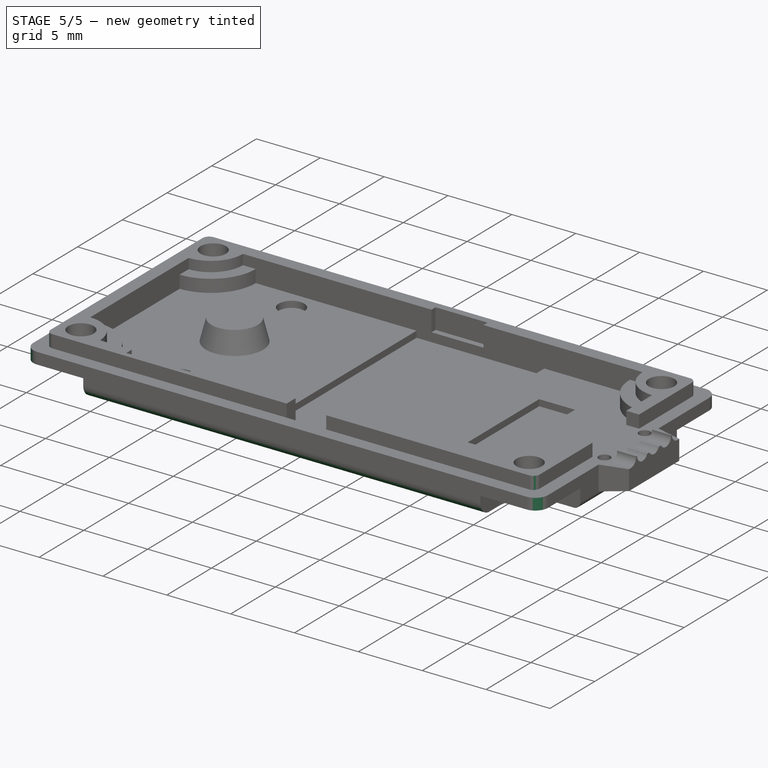
[diagram: stage 5 of 5 — iso view after this stage's code; geometry added in this stage tinted green]
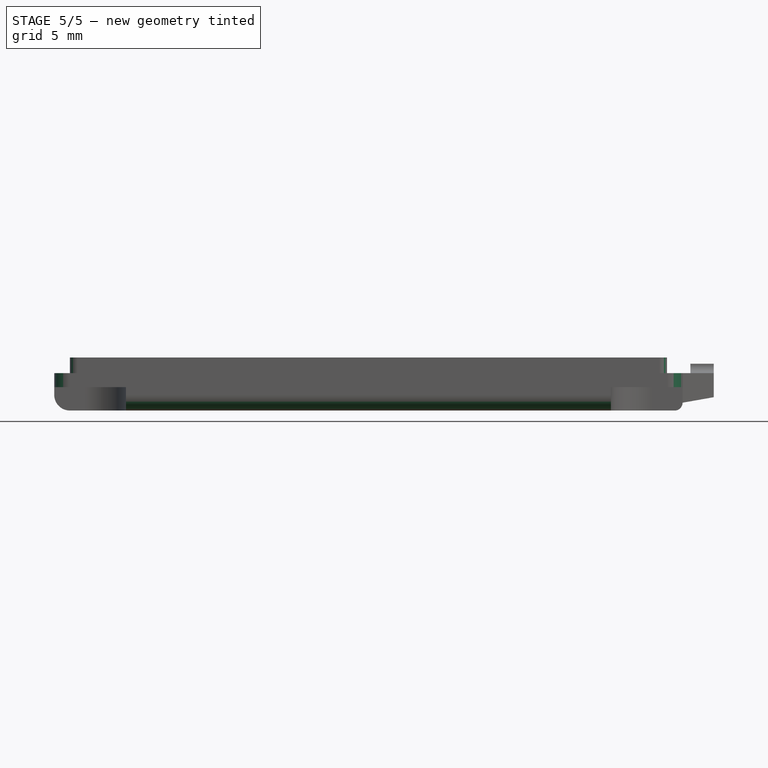
[diagram: stage 5 of 5 — front view after this stage's code; geometry added in this stage tinted green]
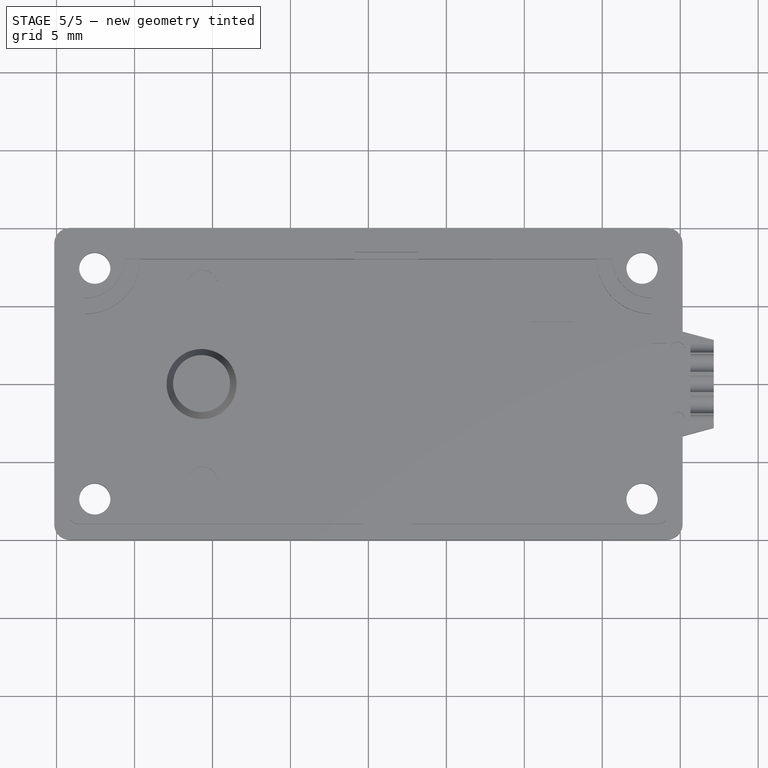
[diagram: stage 5 of 5 — top view after this stage's code; geometry added in this stage tinted green]
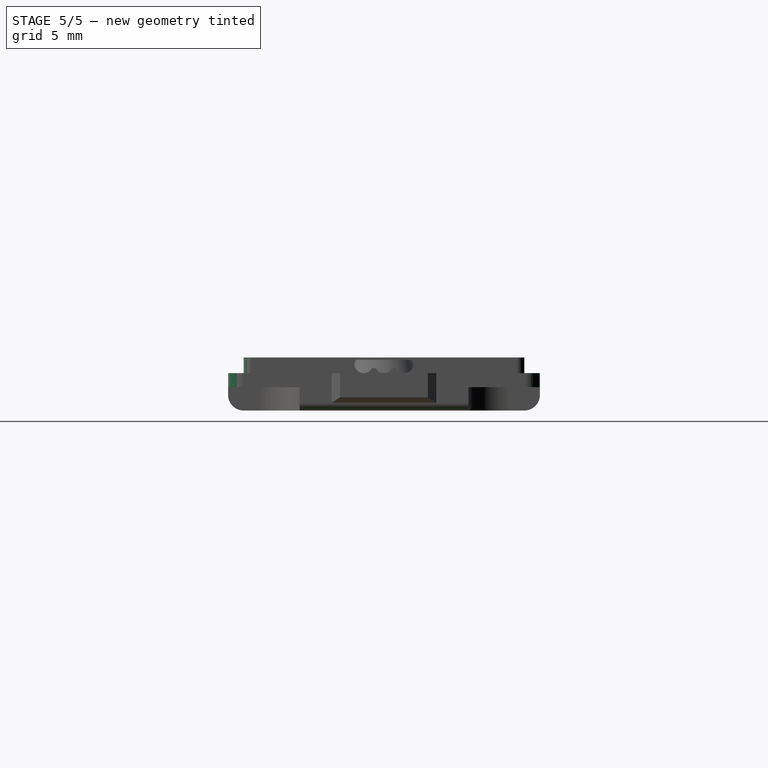
[diagram: stage 5 of 5 — right view after this stage's code; geometry added in this stage tinted green]
FEATURE [Part::Cut] Cut
  Base = -> Fusion
  Tool = -> Revolution
FEATURE [Part::Fillet] Fillet
  Base = -> Cut
  Edges = 4 edges r=0.5: [Edge124,Edge126,Edge134,Edge152]
FEATURE [Part::Fillet] Fillet001
  Base = -> Fillet
  Edges = 4 edges r=1: [Edge194,Edge195,Edge199,Edge204]
FEATURE [Part::Fillet] Fillet002
  Base = -> Fillet001
  Edges = 3 edges r=1: [Edge44,Edge55,Edge74]
FEATURE [Part::Fillet] Fillet003  label="Futaba3003-lid-final"
  Base = -> Fillet002
  Edges = 1 edges r=0.5: [Edge75]
FEATURE [App::DocumentObjectGroup] Group  label="Futaba3003-lid-src"
  Group = -> [Pad,Pocket,Pocket001,Pad001,Pocket002,Pocket003,Pocket004,Pocket005,Pad002,Pocket006,Pocket007,Pocket008,Pocket009,Pocket010,Pocket011,Pocket012,Fillet003]
FEATURE [Part::Feature] Fillet004  label="Futaba3003_lid"
  shape: bbox 42.3 x 20 x 3.4 mm, 120 faces (baked)
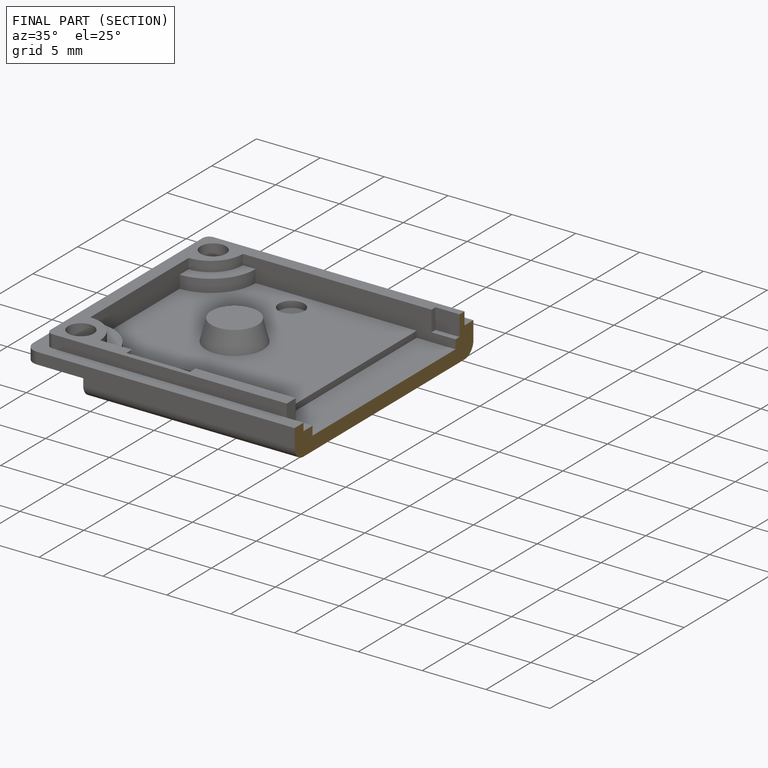
[diagram: finished part — half-section view (interior)]
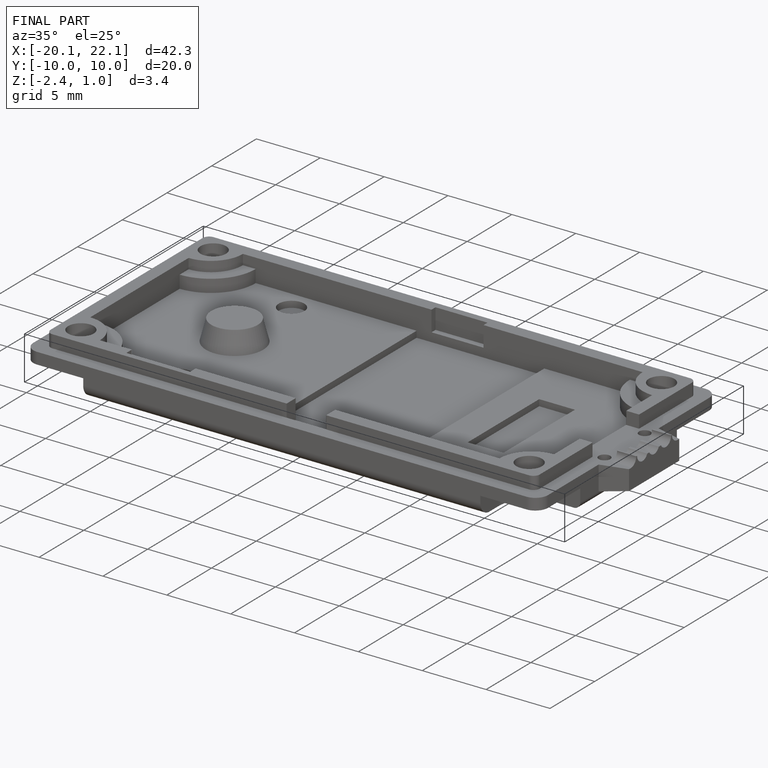
[diagram: finished part — iso view with bounding-box wireframe]
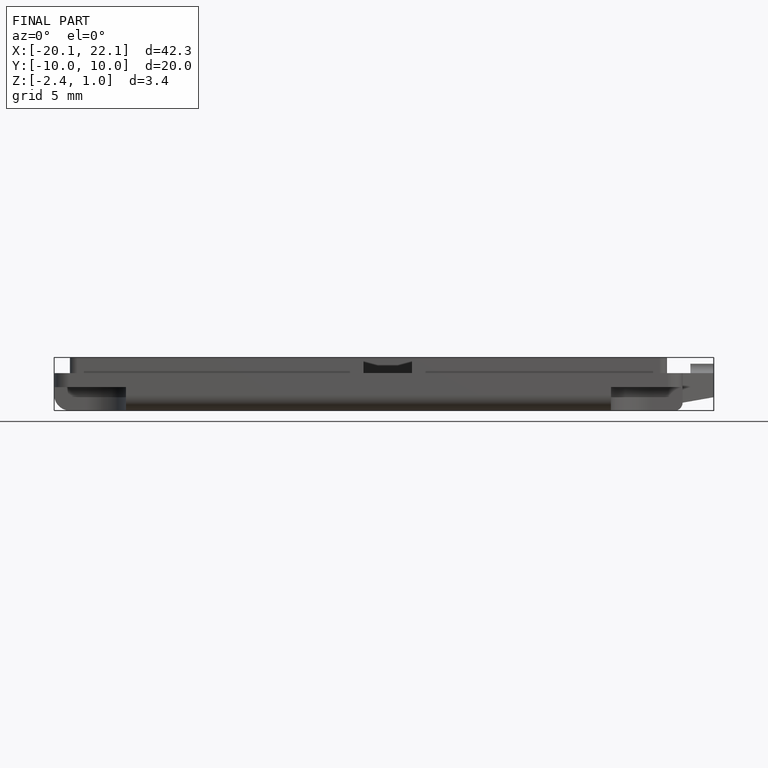
[diagram: finished part — front view with bounding-box wireframe]
